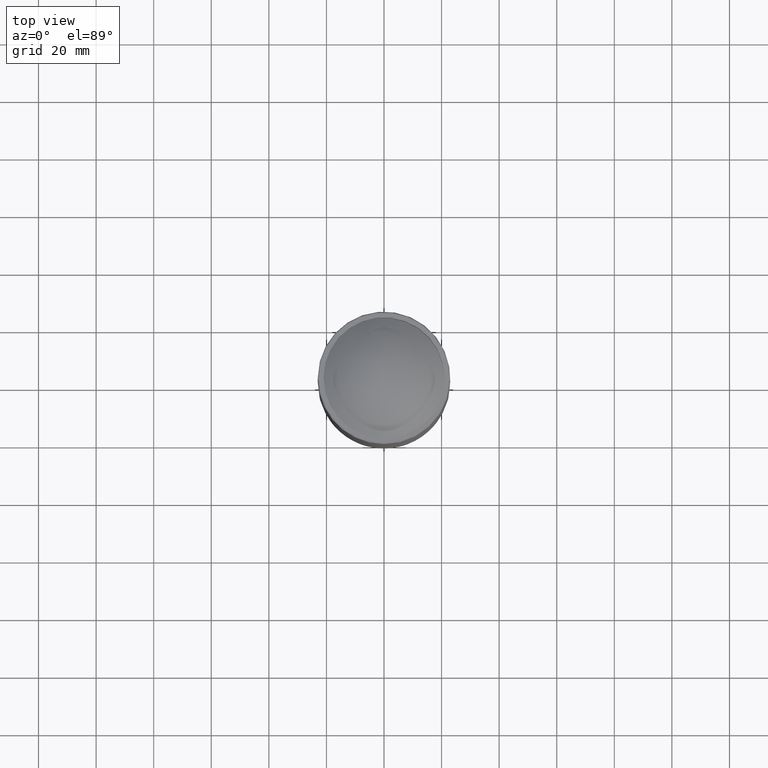
[diagram: clean part render]
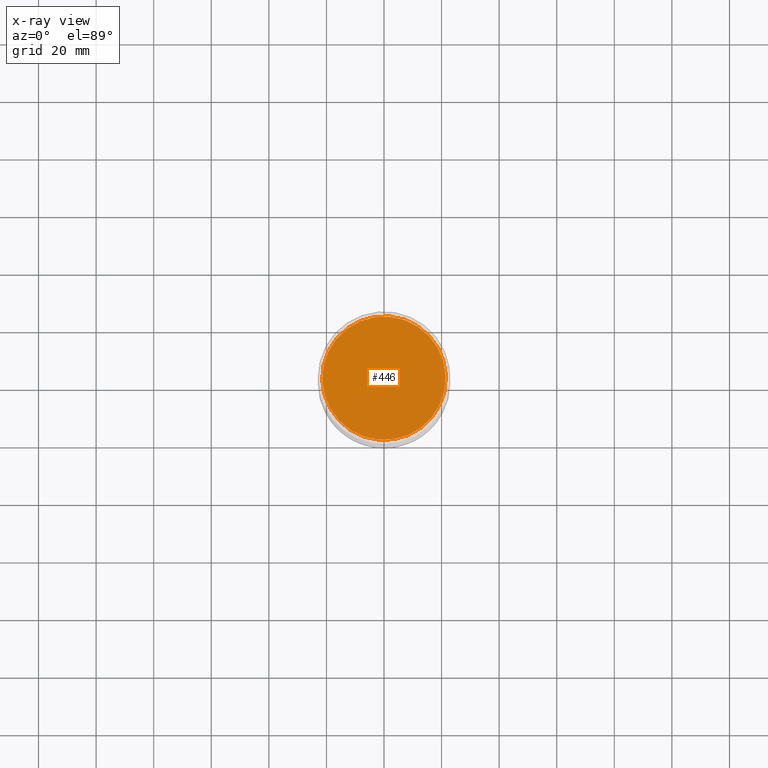
[diagram: x-ray — body ghosted, one internal face saturated and labeled with its STEP entity id]
A machine part, top view, then the same camera in x-ray: the body is ghosted and one INTERNAL B-rep face — a face not visible from any outside direction — is saturated and labeled: STEP entity #446.
In plain terms, the highlighted planar face has unit normal (-0, 0, 1).
Its self-contained STEP definition (entity closure, byte-faithful):
#114 = DIRECTION ( 'NONE',  ( 0.3830490080632378835, -0.9237280213470681067, 1.218036320871736945E-16 ) ) ;
#121 = CARTESIAN_POINT ( 'NONE',  ( 8.217209483082314136, -19.81591518845252153, -429.9999999999999432 ) ) ;
#190 = ORIENTED_EDGE ( 'NONE', *, *, #662, .T. ) ;
#250 = EDGE_LOOP ( 'NONE', ( #190 ) ) ;
#290 = PLANE ( 'NONE',  #878 ) ;
#305 = AXIS2_PLACEMENT_3D ( 'NONE', #306, #455, #601 ) ;
#306 = CARTESIAN_POINT ( 'NONE',  ( 0.000000000000000000, 5.204170427930421283E-15, -429.9999999999999432 ) ) ;
#446 = ADVANCED_FACE ( 'NONE', ( #648 ), #290, .F. ) ;
#455 = DIRECTION ( 'NONE',  ( -1.232595164407830946E-32, -1.318609258053555361E-16, -1.000000000000000000 ) ) ;
#601 = DIRECTION ( 'NONE',  ( 0.3830490080632378835, -0.9237280213470682178, 0.000000000000000000 ) ) ;
#648 = FACE_OUTER_BOUND ( 'NONE', #250, .T. ) ;
#662 = EDGE_CURVE ( 'NONE', #772, #772, #723, .T. ) ;
#723 = CIRCLE ( 'NONE', #305, 21.45211006975307910 ) ;
#763 = CARTESIAN_POINT ( 'NONE',  ( -7.311375404722653570, -63.84507486142587851, -429.9999999999999432 ) ) ;
#772 = VERTEX_POINT ( 'NONE', #121 ) ;
#842 = DIRECTION ( 'NONE',  ( -1.848892746611746419E-32, 1.318609258053556101E-16, 1.000000000000000000 ) ) ;
#878 = AXIS2_PLACEMENT_3D ( 'NONE', #763, #842, #114 ) ;